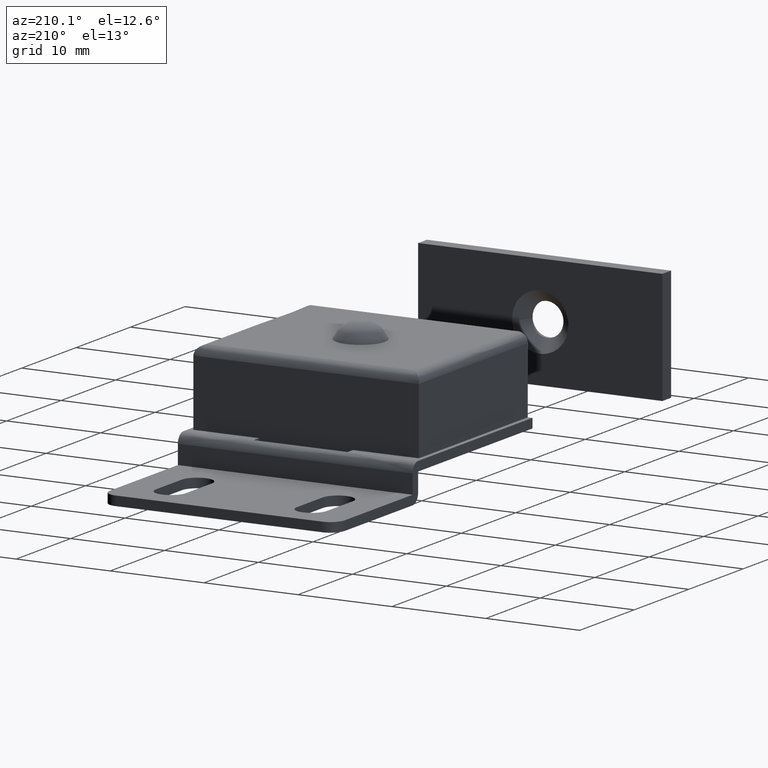
[diagram: clean part render]
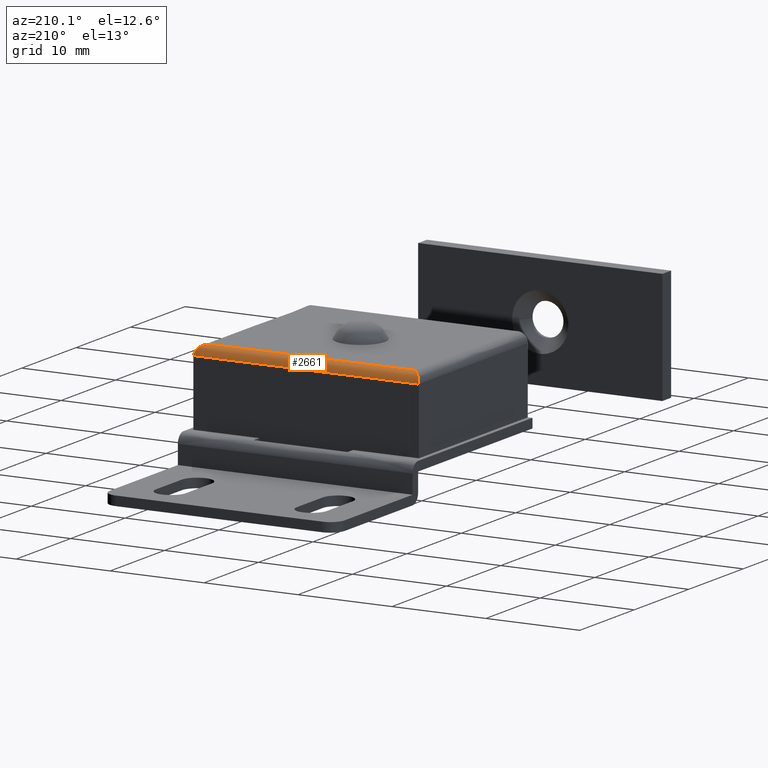
[diagram: same view with one face highlighted and labeled with its STEP entity id]
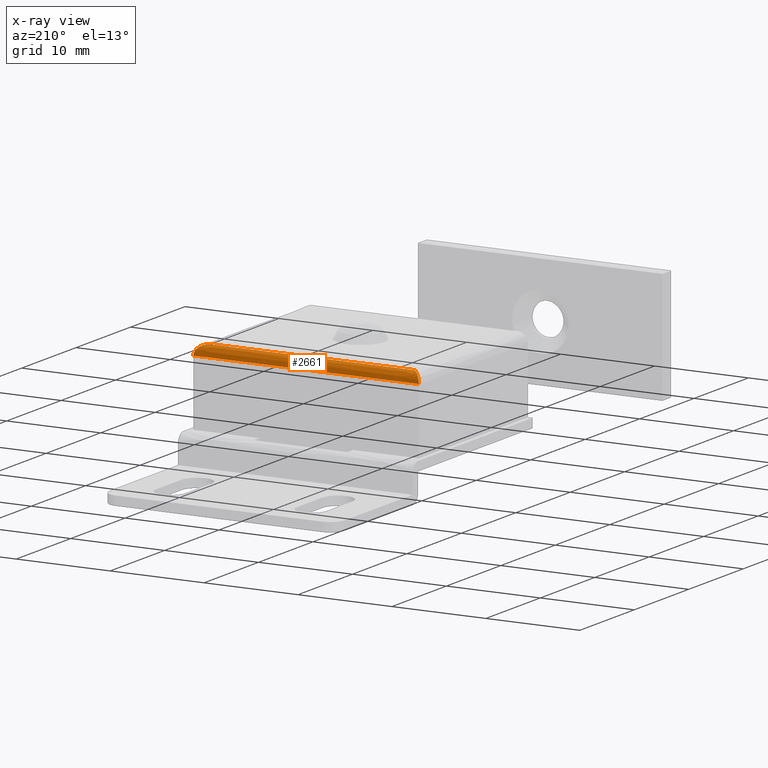
[diagram: x-ray of the same camera — body ghosted, the highlighted face saturated]
A machine part, auxiliary view. The second image highlights one B-rep face of the part: STEP entity #2661.
The next image is the same camera in x-ray: the body ghosted, the highlighted face saturated — about 0% of this face is hidden behind the body in this view.
In plain terms, the highlighted face is a freeform B-spline surface patch.
Its self-contained STEP definition (entity closure, byte-faithful):
#2387=CARTESIAN_POINT('',(11.0,-16.0,11.0));
#2388=VERTEX_POINT('',#2387);
#2394=CARTESIAN_POINT('',(12.0,-16.0,11.0));
#2395=VERTEX_POINT('',#2394);
#2396=CARTESIAN_POINT('',(11.0,-16.0,11.0));
#2397=CARTESIAN_POINT('',(12.0,-16.0,11.0));
#2398=QUASI_UNIFORM_CURVE('',1,(#2396,#2397),.UNSPECIFIED.,.F.,.U.);
#2399=EDGE_CURVE('',#2388,#2395,#2398,.T.);
#2531=CARTESIAN_POINT('',(-10.990000000000000,-16.0,11.0));
#2532=VERTEX_POINT('',#2531);
#2538=CARTESIAN_POINT('',(10.990000000000160,-16.0,11.0));
#2539=VERTEX_POINT('',#2538);
#2540=CARTESIAN_POINT('',(-10.990000000000000,-16.0,11.0));
#2541=CARTESIAN_POINT('',(10.990000000000160,-16.0,11.0));
#2542=QUASI_UNIFORM_CURVE('',1,(#2540,#2541),.UNSPECIFIED.,.F.,.U.);
#2543=EDGE_CURVE('',#2532,#2539,#2542,.T.);
#2589=CARTESIAN_POINT('',(12.600000050000000,-16.000038076935830,10.991273464501630));
#2590=CARTESIAN_POINT('',(-12.615002051250000,-16.000038076935830,10.991273464501630));
#2591=CARTESIAN_POINT('',(12.600000050000000,-15.990680013320459,12.063601342011747));
#2592=CARTESIAN_POINT('',(-12.615002051249999,-15.990680013320459,12.063601342011747));
#2593=CARTESIAN_POINT('',(12.600000050000000,-17.061048539534859,11.998134798421860));
#2594=CARTESIAN_POINT('',(-12.615002051250000,-17.061048539534859,11.998134798421860));
#2602=(BOUNDED_SURFACE()B_SPLINE_SURFACE(1,2,((#2589,#2591,#2593),(#2590,#2592,#2594)),.UNSPECIFIED.,.F.,.F.,.U.)B_SPLINE_SURFACE_WITH_KNOTS((2,2),(3,3),(0.0,25.215002101250001),(0.0,1.0),.UNSPECIFIED.)GEOMETRIC_REPRESENTATION_ITEM()RATIONAL_B_SPLINE_SURFACE(((1.0,0.681998360062499,1.0),(1.0,0.681998360062499,1.0)))REPRESENTATION_ITEM('')SURFACE());
#2603=CARTESIAN_POINT('',(11.0,-17.0,12.0));
#2604=VERTEX_POINT('',#2603);
#2605=CARTESIAN_POINT('',(11.0,-17.0,12.0));
#2606=CARTESIAN_POINT('',(11.999999999999998,-15.999999999999995,12.0));
#2607=CARTESIAN_POINT('',(12.0,-16.0,11.0));
#2615=(BOUNDED_CURVE()B_SPLINE_CURVE(2,(#2605,#2606,#2607),.UNSPECIFIED.,.F.,.U.)CURVE()GEOMETRIC_REPRESENTATION_ITEM()QUASI_UNIFORM_CURVE()RATIONAL_B_SPLINE_CURVE((1.0,0.707106781186547,1.0))REPRESENTATION_ITEM(''));
#2616=EDGE_CURVE('',#2604,#2395,#2615,.T.);
#2617=ORIENTED_EDGE('',*,*,#2616,.T.);
#2618=ORIENTED_EDGE('',*,*,#2399,.F.);
#2619=CARTESIAN_POINT('',(11.0,-16.0,11.0));
#2620=CARTESIAN_POINT('',(10.990000000000160,-16.0,11.0));
#2621=QUASI_UNIFORM_CURVE('',1,(#2619,#2620),.UNSPECIFIED.,.F.,.U.);
#2622=EDGE_CURVE('',#2388,#2539,#2621,.T.);
#2623=ORIENTED_EDGE('',*,*,#2622,.T.);
#2624=ORIENTED_EDGE('',*,*,#2543,.F.);
#2625=CARTESIAN_POINT('',(-11.0,-16.0,11.0));
#2626=VERTEX_POINT('',#2625);
#2627=CARTESIAN_POINT('',(-10.990000000000000,-16.0,11.0));
#2628=CARTESIAN_POINT('',(-11.0,-16.0,11.0));
#2629=QUASI_UNIFORM_CURVE('',1,(#2627,#2628),.UNSPECIFIED.,.F.,.U.);
#2630=EDGE_CURVE('',#2532,#2626,#2629,.T.);
#2631=ORIENTED_EDGE('',*,*,#2630,.T.);
#2632=CARTESIAN_POINT('',(-12.000002000000000,-16.0,11.0));
#2633=VERTEX_POINT('',#2632);
#2634=CARTESIAN_POINT('',(-12.000002000000000,-16.0,11.0));
#2635=CARTESIAN_POINT('',(-11.0,-16.0,11.0));
#2636=QUASI_UNIFORM_CURVE('',1,(#2634,#2635),.UNSPECIFIED.,.F.,.U.);
#2637=EDGE_CURVE('',#2633,#2626,#2636,.T.);
#2638=ORIENTED_EDGE('',*,*,#2637,.F.);
#2639=CARTESIAN_POINT('',(-11.000002000000000,-17.0,12.0));
#2640=VERTEX_POINT('',#2639);
#2641=CARTESIAN_POINT('',(-12.000001999999981,-16.0,11.0));
#2642=CARTESIAN_POINT('',(-12.000001999999979,-16.000000000000004,12.000000000000002));
#2643=CARTESIAN_POINT('',(-11.000001999999990,-16.999999999999989,12.0));
#2651=(BOUNDED_CURVE()B_SPLINE_CURVE(2,(#2641,#2642,#2643),.UNSPECIFIED.,.F.,.U.)CURVE()GEOMETRIC_REPRESENTATION_ITEM()QUASI_UNIFORM_CURVE()RATIONAL_B_SPLINE_CURVE((1.0,0.707106781186539,1.0))REPRESENTATION_ITEM(''));
#2652=EDGE_CURVE('',#2633,#2640,#2651,.T.);
#2653=ORIENTED_EDGE('',*,*,#2652,.T.);
#2654=CARTESIAN_POINT('',(11.0,-17.0,12.0));
#2655=CARTESIAN_POINT('',(-11.000002000000000,-17.0,12.0));
#2656=QUASI_UNIFORM_CURVE('',1,(#2654,#2655),.UNSPECIFIED.,.F.,.U.);
#2657=EDGE_CURVE('',#2604,#2640,#2656,.T.);
#2658=ORIENTED_EDGE('',*,*,#2657,.F.);
#2659=EDGE_LOOP('',(#2617,#2618,#2623,#2624,#2631,#2638,#2653,#2658));
#2660=FACE_OUTER_BOUND('',#2659,.T.);
#2661=ADVANCED_FACE('',(#2660),#2602,.T.);